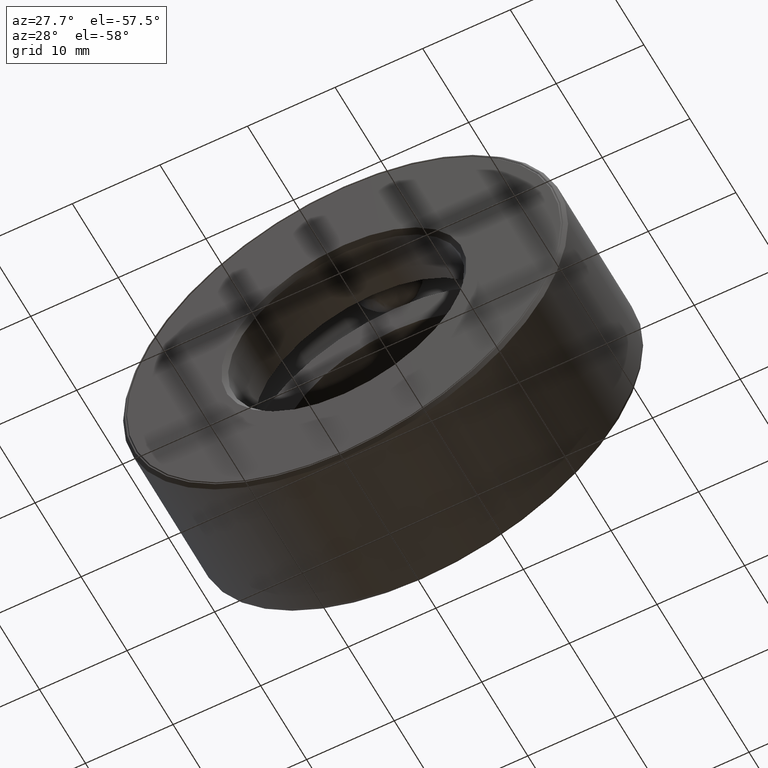
[diagram: clean part render]
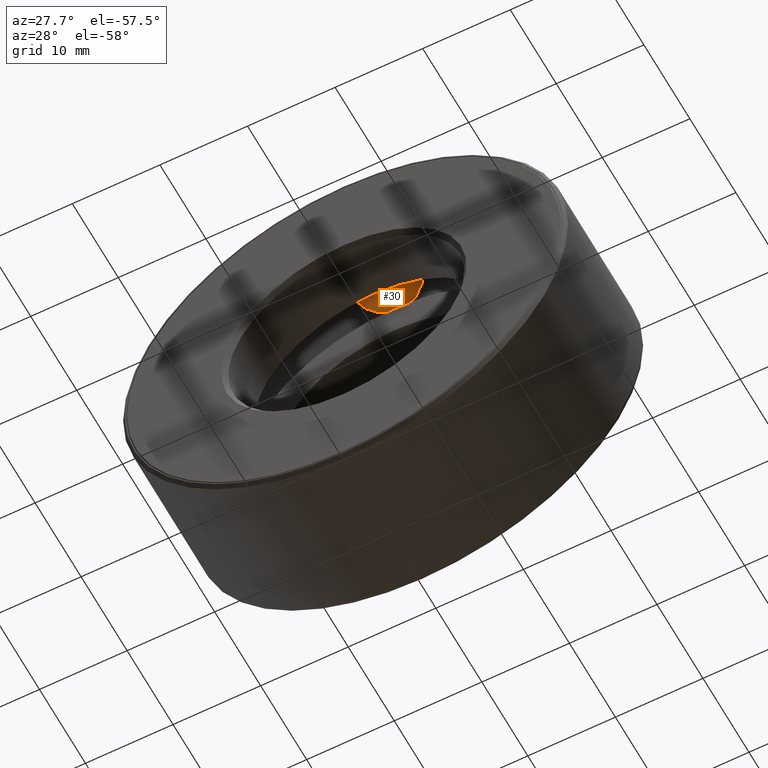
[diagram: same view with one face highlighted and labeled with its STEP entity id]
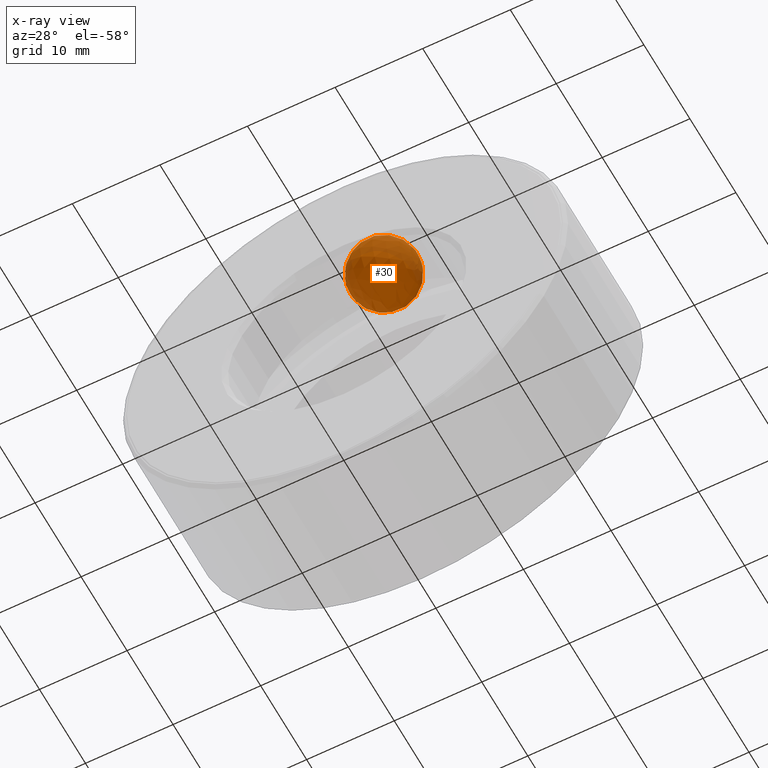
[diagram: x-ray of the same camera — body ghosted, the highlighted face saturated]
A machine part, auxiliary view. The second image highlights one B-rep face of the part: STEP entity #30.
The next image is the same camera in x-ray: the body ghosted, the highlighted face saturated — about 29% of this face is hidden behind the body in this view.
In plain terms, the highlighted spherical surface has radius 3.9688 mm.
Its self-contained STEP definition (entity closure, byte-faithful):
#30 = ADVANCED_FACE ( 'NONE', ( ), #463, .T. ) ;
#114 = CARTESIAN_POINT ( 'NONE',  ( 2.844684420822442200E-015, 0.3437499999999998300, 0.8147499999999998600 ) ) ;
#169 = AXIS2_PLACEMENT_3D ( 'NONE', #114, #319, #233 ) ;
#233 = DIRECTION ( 'NONE',  ( -3.491481338843134500E-015, 0.0000000000000000000, -1.000000000000000000 ) ) ;
#319 = DIRECTION ( 'NONE',  ( -1.000000000000000000, 0.0000000000000000000, 3.491481338843134500E-015 ) ) ;
#463 = SPHERICAL_SURFACE ( 'NONE', #169, 0.1562500000000000000 ) ;